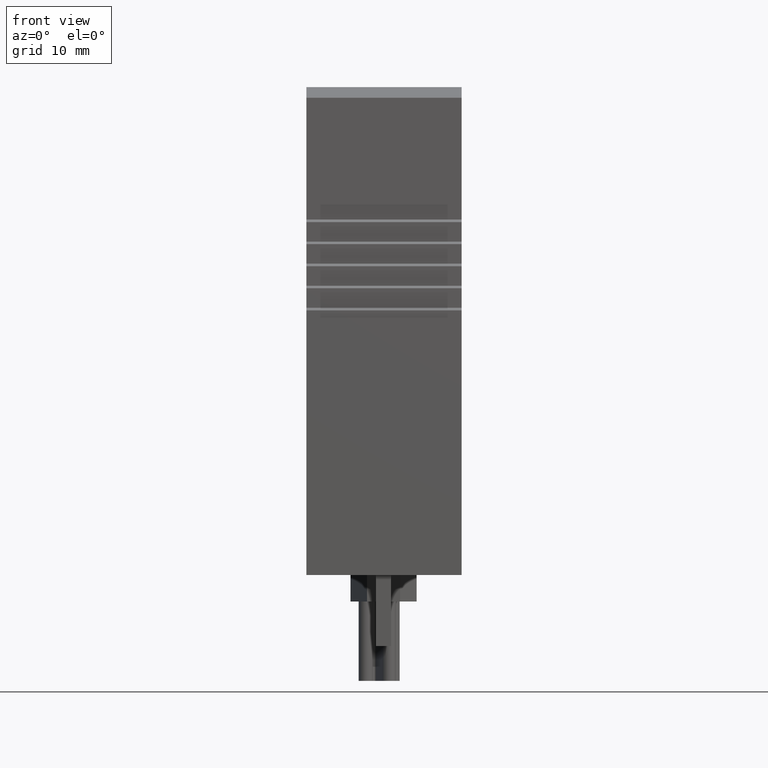
[diagram: clean part render]
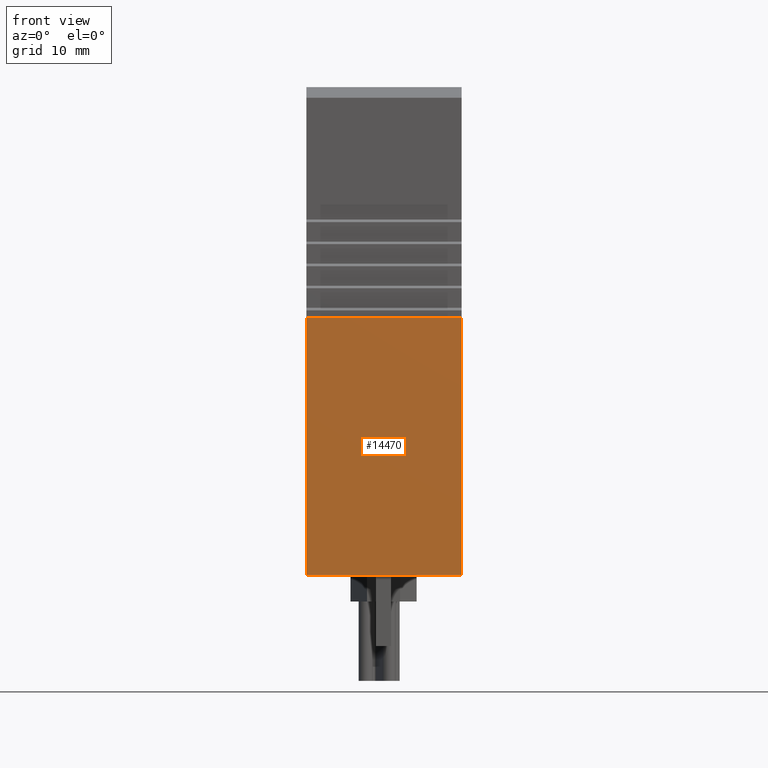
[diagram: same view with one face highlighted and labeled with its STEP entity id]
A machine part, front view. The second image highlights one B-rep face of the part: STEP entity #14470.
In plain terms, the highlighted planar face has unit normal (-0, -1, -0).
Its self-contained STEP definition (entity closure, byte-faithful):
#3730=CARTESIAN_POINT('',(-22.2537624398426,24.7145893912868,
20.2498827057468));
#3740=VERTEX_POINT('',#3730);
#3770=CARTESIAN_POINT('',(-22.2537624398426,-20.149999999878,
20.2498827057463));
#3780=DIRECTION('',(1.26591334879562E-16,-1.,-1.24373101147408E-14));
#3790=VECTOR('',#3780,1.);
#3800=LINE('',#3770,#3790);
#3810=CARTESIAN_POINT('',(-22.2537624398426,53.864589391412,
20.2498827057472));
#3820=VERTEX_POINT('',#3810);
#3830=EDGE_CURVE('',#3820,#3740,#3800,.T.);
#7750=CARTESIAN_POINT('',(-22.2537624398426,53.8645893914122,
2.64988270574722));
#7760=VERTEX_POINT('',#7750);
#7880=CARTESIAN_POINT('',(-22.2537624398426,53.8645893914121,
7.14988270574725));
#7890=DIRECTION('',(-2.44929359829315E-16,1.24373101147408E-14,-1.));
#7900=VECTOR('',#7890,1.);
#7910=LINE('',#7880,#7900);
#7920=EDGE_CURVE('',#3820,#7760,#7910,.T.);
#14240=CARTESIAN_POINT('',(-22.2537624398426,53.8645893914117,
38.1498827057473));
#14250=DIRECTION('',(-1.,-1.22464679914737E-16,2.44929359829313E-16));
#14260=DIRECTION('',(-1.22464679914734E-16,1.,1.24373101147408E-14));
#14270=AXIS2_PLACEMENT_3D('',#14240,#14250,#14260);
#14280=PLANE('',#14270);
#14290=CARTESIAN_POINT('',(-22.2537624398426,24.7145893912868,
22.0201227057469));
#14300=DIRECTION('',(-2.44929359829315E-16,1.24373101147408E-14,-1.));
#14310=VECTOR('',#14300,1.);
#14320=LINE('',#14290,#14310);
#14330=CARTESIAN_POINT('',(-22.2537624398426,24.7145893912871,
2.64988270574686));
#14340=VERTEX_POINT('',#14330);
#14350=EDGE_CURVE('',#3740,#14340,#14320,.T.);
#14360=ORIENTED_EDGE('',*,*,#14350,.F.);
#14370=CARTESIAN_POINT('',(-22.2537624398426,-20.1499999998778,
2.6498827057463));
#14380=DIRECTION('',(-1.26591334879562E-16,1.,1.24373101147408E-14));
#14390=VECTOR('',#14380,1.);
#14400=LINE('',#14370,#14390);
#14410=EDGE_CURVE('',#14340,#7760,#14400,.T.);
#14420=ORIENTED_EDGE('',*,*,#14410,.F.);
#14430=ORIENTED_EDGE('',*,*,#7920,.T.);
#14440=ORIENTED_EDGE('',*,*,#3830,.F.);
#14450=EDGE_LOOP('',(#14440,#14430,#14420,#14360));
#14460=FACE_OUTER_BOUND('',#14450,.T.);
#14470=ADVANCED_FACE('',(#14460),#14280,.T.);